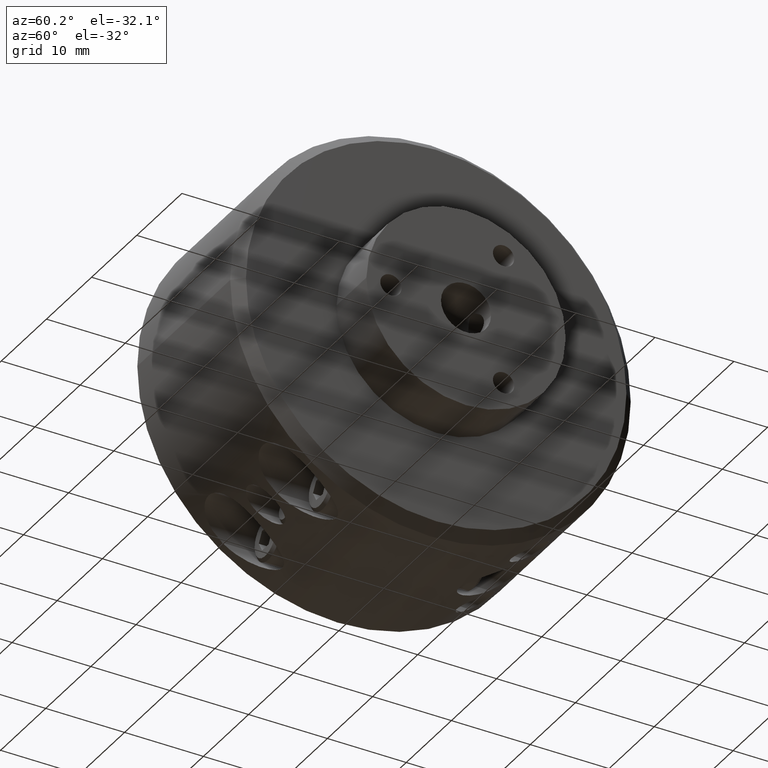
[diagram: clean part render]
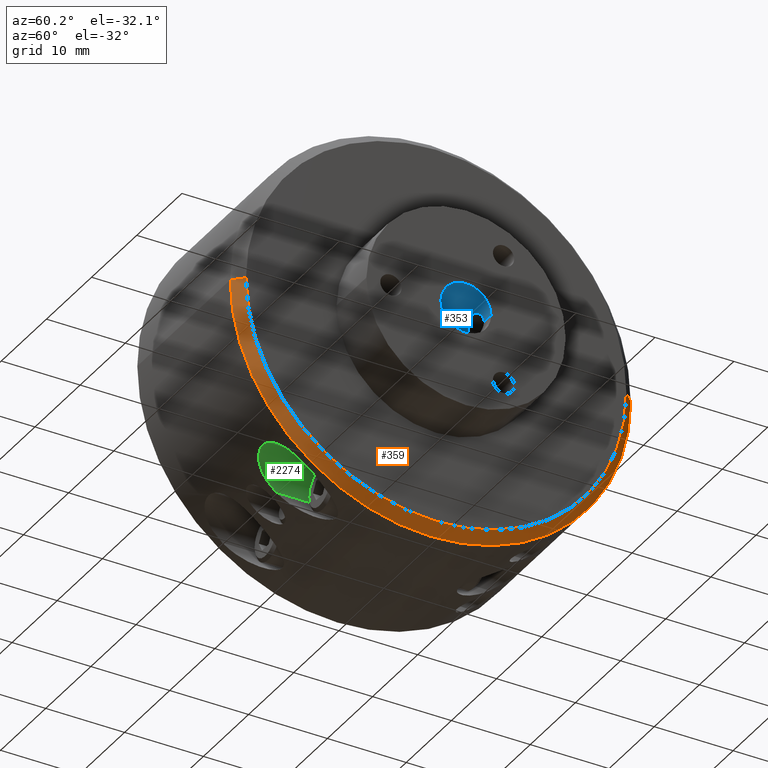
[diagram: same view with three faces highlighted in distinct colors, each labeled with its STEP entity id]
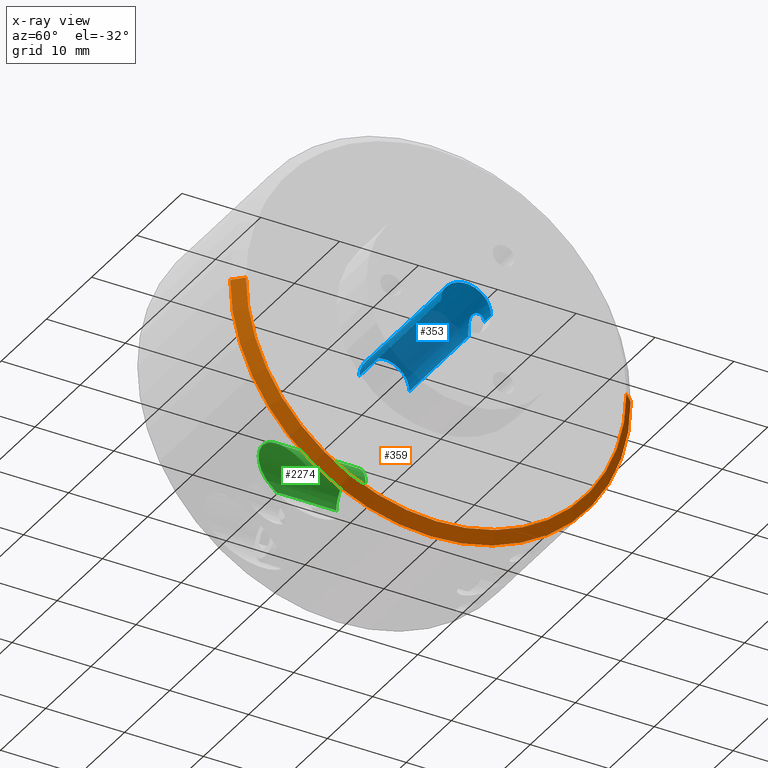
[diagram: x-ray of the same camera — body ghosted, the three highlighted faces saturated]
A machine part, auxiliary view with three faces highlighted in distinct colors.
The next image is the same camera in x-ray (body ghosted, the three faces saturated) — at least one of them is partly hidden behind the body in this view.
Their STEP definitions:

[orange] entity #359 — the highlighted conical surface has half-angle 45 deg.
#136 = AXIS2_PLACEMENT_3D ( 'NONE', #395, #504, #498 ) ;
#203 = AXIS2_PLACEMENT_3D ( 'NONE', #2701, #2879, #2624 ) ;
#211 = AXIS2_PLACEMENT_3D ( 'NONE', #2680, #2524, #2723 ) ;
#359 = ADVANCED_FACE ( 'NONE', ( #3288 ), #3297, .T. ) ;
#395 = CARTESIAN_POINT ( 'NONE',  ( 0.4050000000000004700, 1.337268248646842600E-016, 0.0000000000000000000 ) ) ;
#498 = DIRECTION ( 'NONE',  ( 1.365923996832131600E-016, -1.000000000000000000, 0.0000000000000000000 ) ) ;
#504 = DIRECTION ( 'NONE',  ( -1.000000000000000000, -1.193989507720393000E-016, -0.0000000000000000000 ) ) ;
#622 = EDGE_CURVE ( 'NONE', #846, #809, #3490, .T. ) ;
#638 = EDGE_CURVE ( 'NONE', #845, #831, #2891, .T. ) ;
#656 = EDGE_CURVE ( 'NONE', #846, #831, #2907, .T. ) ;
#678 = EDGE_CURVE ( 'NONE', #809, #845, #2933, .T. ) ;
#809 = VERTEX_POINT ( 'NONE', #1678 ) ;
#831 = VERTEX_POINT ( 'NONE', #1700 ) ;
#845 = VERTEX_POINT ( 'NONE', #1714 ) ;
#846 = VERTEX_POINT ( 'NONE', #1715 ) ;
#1117 = CARTESIAN_POINT ( 'NONE',  ( 0.4050000000000005800, -0.9999999999999998900, 0.0000000000000000000 ) ) ;
#1118 = DIRECTION ( 'NONE',  ( -0.7071067811865454600, -0.7071067811865495700, 0.0000000000000000000 ) ) ;
#1217 = CARTESIAN_POINT ( 'NONE',  ( 0.4050000000000003000, 1.000000000000000200, 1.224646799147353200E-016 ) ) ;
#1218 = DIRECTION ( 'NONE',  ( -0.7071067811865456900, 0.7071067811865493500, 8.659560562354956300E-017 ) ) ;
#1678 = CARTESIAN_POINT ( 'NONE',  ( 0.4550000000000000700, 0.9500000000000000700, 1.194030629168669300E-016 ) ) ;
#1700 = CARTESIAN_POINT ( 'NONE',  ( 0.4050000000000005800, -0.9999999999999998900, 0.0000000000000000000 ) ) ;
#1714 = CARTESIAN_POINT ( 'NONE',  ( 0.4050000000000003000, 1.000000000000000200, 1.224646799147353500E-016 ) ) ;
#1715 = CARTESIAN_POINT ( 'NONE',  ( 0.4550000000000003500, -0.9499999999999998400, 0.0000000000000000000 ) ) ;
#2338 = ORIENTED_EDGE ( 'NONE', *, *, #656, .T. ) ;
#2342 = ORIENTED_EDGE ( 'NONE', *, *, #638, .F. ) ;
#2422 = ORIENTED_EDGE ( 'NONE', *, *, #622, .F. ) ;
#2452 = ORIENTED_EDGE ( 'NONE', *, *, #678, .F. ) ;
#2524 = DIRECTION ( 'NONE',  ( -1.000000000000000000, -1.193989507720393000E-016, -0.0000000000000000000 ) ) ;
#2624 = DIRECTION ( 'NONE',  ( 1.437814733507507100E-016, -1.000000000000000000, 0.0000000000000000000 ) ) ;
#2680 = CARTESIAN_POINT ( 'NONE',  ( 0.4050000000000004700, 1.337268248646842600E-016, 0.0000000000000000000 ) ) ;
#2701 = CARTESIAN_POINT ( 'NONE',  ( 0.4550000000000001800, 1.396967724032861400E-016, 0.0000000000000000000 ) ) ;
#2723 = DIRECTION ( 'NONE',  ( 1.365923996832131600E-016, -1.000000000000000000, 0.0000000000000000000 ) ) ;
#2879 = DIRECTION ( 'NONE',  ( 1.000000000000000000, 1.193989507720394800E-016, 0.0000000000000000000 ) ) ;
#2891 = CIRCLE ( 'NONE', #211, 1.000000000000000000 ) ;
#2907 = LINE ( 'NONE', #1117, #2908 ) ;
#2908 = VECTOR ( 'NONE', #1118, 39.37007874015748100 ) ;
#2933 = LINE ( 'NONE', #1217, #2934 ) ;
#2934 = VECTOR ( 'NONE', #1218, 39.37007874015748100 ) ;
#3288 = FACE_OUTER_BOUND ( 'NONE', #3682, .T. ) ;
#3297 = CONICAL_SURFACE ( 'NONE', #136, 1.000000000000000000, 0.7853981633974510500 ) ;
#3490 = CIRCLE ( 'NONE', #203, 0.9499999999999999600 ) ;
#3682 = EDGE_LOOP ( 'NONE', ( #2452, #2422, #2338, #2342 ) ) ;

[blue] entity #353 — the highlighted cylindrical surface (edge-blend (fillet) strip) has radius 3.175 mm, axis along (1, 0, -0).
#14 = CARTESIAN_POINT ( 'NONE',  ( 0.5170000000000000200, 0.1250000000000001400, 3.821250366191347800E-019 ) ) ;
#128 = AXIS2_PLACEMENT_3D ( 'NONE', #403, #443, #513 ) ;
#165 = AXIS2_PLACEMENT_3D ( 'NONE', #2512, #2609, #2820 ) ;
#169 = AXIS2_PLACEMENT_3D ( 'NONE', #2830, #2801, #2575 ) ;
#353 = ADVANCED_FACE ( 'NONE', ( #3270 ), #3285, .F. ) ;
#403 = CARTESIAN_POINT ( 'NONE',  ( -0.7149999999999996400, 3.032960542342103800E-032, 0.0000000000000000000 ) ) ;
#443 = DIRECTION ( 'NONE',  ( 1.000000000000000000, 1.193989507720394800E-016, -0.0000000000000000000 ) ) ;
#469 = VERTEX_POINT ( 'NONE', #14 ) ;
#513 = DIRECTION ( 'NONE',  ( 0.0000000000000000000, 1.000000000000000000, 0.0000000000000000000 ) ) ;
#531 = EDGE_CURVE ( 'NONE', #840, #916, #3359, .T. ) ;
#540 = EDGE_CURVE ( 'NONE', #823, #1376, #3368, .T. ) ;
#542 = EDGE_CURVE ( 'NONE', #825, #897, #2465, .T. ) ;
#663 = EDGE_CURVE ( 'NONE', #469, #825, #2300, .T. ) ;
#692 = EDGE_CURVE ( 'NONE', #823, #469, #2946, .T. ) ;
#695 = EDGE_CURVE ( 'NONE', #1376, #916, #2959, .T. ) ;
#714 = EDGE_CURVE ( 'NONE', #897, #840, #2979, .T. ) ;
#823 = VERTEX_POINT ( 'NONE', #1692 ) ;
#825 = VERTEX_POINT ( 'NONE', #1694 ) ;
#840 = VERTEX_POINT ( 'NONE', #1709 ) ;
#897 = VERTEX_POINT ( 'NONE', #1763 ) ;
#916 = VERTEX_POINT ( 'NONE', #1781 ) ;
#1127 = CARTESIAN_POINT ( 'NONE',  ( 0.5170000000000000200, 0.1250000000000001400, 3.821250366191347800E-019 ) ) ;
#1147 = CARTESIAN_POINT ( 'NONE',  ( 0.5170000000000001300, 0.1250000000000001400, 0.004597177212403101200 ) ) ;
#1148 = CARTESIAN_POINT ( 'NONE',  ( 0.5174612564230969300, 0.1247473855785759700, 0.009100874420990237600 ) ) ;
#1149 = CARTESIAN_POINT ( 'NONE',  ( 0.5192528699671881100, 0.1237865640216849700, 0.01793384207641626100 ) ) ;
#1150 = CARTESIAN_POINT ( 'NONE',  ( 0.5206078562973611700, 0.1230655871878557800, 0.02230521580235242000 ) ) ;
#1151 = CARTESIAN_POINT ( 'NONE',  ( 0.5258022622888429700, 0.1204015550863055700, 0.03462818419039922400 ) ) ;
#1152 = CARTESIAN_POINT ( 'NONE',  ( 0.5308516916564427500, 0.1179051011017718100, 0.04204348587904195600 ) ) ;
#1153 = CARTESIAN_POINT ( 'NONE',  ( 0.5431811266379527000, 0.1127758473194550000, 0.05432196454528497000 ) ) ;
#1154 = CARTESIAN_POINT ( 'NONE',  ( 0.5505698187351132400, 0.1101089459691188800, 0.05930092799048442000 ) ) ;
#1155 = CARTESIAN_POINT ( 'NONE',  ( 0.5627908422041947300, 0.1071383793984366800, 0.06442253232074476900 ) ) ;
#1156 = CARTESIAN_POINT ( 'NONE',  ( 0.5671531657757990000, 0.1063032403000085400, 0.06577024572360022600 ) ) ;
#1157 = CARTESIAN_POINT ( 'NONE',  ( 0.5759723683828248400, 0.1051825438895193100, 0.06754803166453815500 ) ) ;
#1158 = CARTESIAN_POINT ( 'NONE',  ( 0.5804500864211641400, 0.1048856520216198000, 0.06799999999999795100 ) ) ;
#1159 = CARTESIAN_POINT ( 'NONE',  ( 0.5849999999999716500, 0.1048856520216246800, 0.06800000000000534800 ) ) ;
#1260 = CARTESIAN_POINT ( 'NONE',  ( -0.7149999999999996400, 0.1250000000000000000, 0.0000000000000000000 ) ) ;
#1264 = DIRECTION ( 'NONE',  ( 1.000000000000000000, 1.193989507720394800E-016, -0.0000000000000000000 ) ) ;
#1265 = CARTESIAN_POINT ( 'NONE',  ( -0.7149999999999996400, -0.1250000000000000000, 1.530808498934191500E-017 ) ) ;
#1272 = DIRECTION ( 'NONE',  ( 1.000000000000000000, 1.193989507720394800E-016, -0.0000000000000000000 ) ) ;
#1376 = VERTEX_POINT ( 'NONE', #1785 ) ;
#1386 = CARTESIAN_POINT ( 'NONE',  ( -0.7149999999999996400, 0.1250000000000000000, 0.0000000000000000000 ) ) ;
#1387 = DIRECTION ( 'NONE',  ( 1.000000000000000000, 1.193989507720394800E-016, -0.0000000000000000000 ) ) ;
#1692 = CARTESIAN_POINT ( 'NONE',  ( 0.002500000000000000100, 0.1250000000000001700, 0.0000000000000000000 ) ) ;
#1694 = CARTESIAN_POINT ( 'NONE',  ( 0.5849999999999716500, 0.1048856520216246800, 0.06800000000000534800 ) ) ;
#1709 = CARTESIAN_POINT ( 'NONE',  ( 0.7150000000000001900, 0.1250000000000001700, 0.0000000000000000000 ) ) ;
#1763 = CARTESIAN_POINT ( 'NONE',  ( 0.6530000000000569800, 0.1250000000000313400, -5.915159800068087900E-015 ) ) ;
#1781 = CARTESIAN_POINT ( 'NONE',  ( 0.7150000000000001900, -0.1249999999999998300, 1.530808498934191500E-017 ) ) ;
#1785 = CARTESIAN_POINT ( 'NONE',  ( 0.002500000000000000100, -0.1249999999999998300, 1.530808498934191500E-017 ) ) ;
#2300 = B_SPLINE_CURVE_WITH_KNOTS ( 'NONE', 3,
 ( #1127, #1147, #1148, #1149, #1150, #1151, #1152, #1153, #1154, #1155, #1156, #1157, #1158, #1159 ),
 .UNSPECIFIED., .F., .F.,
 ( 4, 2, 2, 2, 2, 2, 4 ),
 ( 2.541971923693354100E-019, 0.0003448980618869013100, 0.0006897961237738023000, 0.001379592247547602200, 0.002069388371321402100, 0.002414286433208299800, 0.002759184495095197100 ),
 .UNSPECIFIED. ) ;
#2462 = EDGE_LOOP ( 'NONE', ( #3513, #3525, #3603, #3586, #3536, #3601, #3564 ) ) ;
#2465 = B_SPLINE_CURVE_WITH_KNOTS ( 'NONE', 3,
 ( #2549, #2567, #2504, #2561, #2597, #2652, #2611, #2558, #2711, #2520, #2660, #2705, #2632, #2637 ),
 .UNSPECIFIED., .F., .F.,
 ( 4, 2, 2, 2, 2, 2, 4 ),
 ( 0.002759184495095197100, 0.003103542578769292000, 0.003447900662443387300, 0.004136616829791576700, 0.004825332997139766500, 0.005169691080813862200, 0.005514049164487957100 ),
 .UNSPECIFIED. ) ;
#2504 = CARTESIAN_POINT ( 'NONE',  ( 0.5941356539297754100, 0.1051920511929587800, 0.06753334104602282100 ) ) ;
#2512 = CARTESIAN_POINT ( 'NONE',  ( 0.002500000000000000100, 1.707404996040164500E-016, 0.0000000000000000000 ) ) ;
#2520 = CARTESIAN_POINT ( 'NONE',  ( 0.6494076116300988600, 0.1230738582384731900, 0.02225439114618697400 ) ) ;
#2549 = CARTESIAN_POINT ( 'NONE',  ( 0.5849999999999716500, 0.1048856520216246800, 0.06800000000000534800 ) ) ;
#2558 = CARTESIAN_POINT ( 'NONE',  ( 0.6392295574703329400, 0.1179434405829972700, 0.04193630725446686300 ) ) ;
#2561 = CARTESIAN_POINT ( 'NONE',  ( 0.6029471878181487100, 0.1063203132615651300, 0.06574276214902403900 ) ) ;
#2567 = CARTESIAN_POINT ( 'NONE',  ( 0.5895427901574732400, 0.1048856520216173800, 0.06800000000000165600 ) ) ;
#2575 = DIRECTION ( 'NONE',  ( 0.0000000000000000000, 1.000000000000000000, 0.0000000000000000000 ) ) ;
#2597 = CARTESIAN_POINT ( 'NONE',  ( 0.6072762627932033500, 0.1071513997025680000, 0.06440150807647761200 ) ) ;
#2609 = DIRECTION ( 'NONE',  ( 1.000000000000000000, 0.0000000000000000000, 0.0000000000000000000 ) ) ;
#2611 = CARTESIAN_POINT ( 'NONE',  ( 0.6269421092708745700, 0.1128226519951416700, 0.05422507021184213400 ) ) ;
#2632 = CARTESIAN_POINT ( 'NONE',  ( 0.6530000000000004700, 0.1250000000000007200, 0.004537651897807780600 ) ) ;
#2637 = CARTESIAN_POINT ( 'NONE',  ( 0.6530000000000569800, 0.1250000000000313400, -5.915159800068087900E-015 ) ) ;
#2652 = CARTESIAN_POINT ( 'NONE',  ( 0.6195759746309664800, 0.1101510795155072200, 0.05922538716247192200 ) ) ;
#2660 = CARTESIAN_POINT ( 'NONE',  ( 0.6507574113311254100, 0.1237920219119307600, 0.01790150408575156800 ) ) ;
#2705 = CARTESIAN_POINT ( 'NONE',  ( 0.6525503323680886800, 0.1247536570490513800, 0.009025164290127908300 ) ) ;
#2711 = CARTESIAN_POINT ( 'NONE',  ( 0.6442639742547211500, 0.1204348588561655700, 0.03449891013148825200 ) ) ;
#2801 = DIRECTION ( 'NONE',  ( 1.000000000000000000, 1.193989507720394800E-016, 0.0000000000000000000 ) ) ;
#2820 = DIRECTION ( 'NONE',  ( 0.0000000000000000000, 0.0000000000000000000, -1.000000000000000000 ) ) ;
#2830 = CARTESIAN_POINT ( 'NONE',  ( 0.7150000000000001900, 1.707404996040164500E-016, 0.0000000000000000000 ) ) ;
#2946 = LINE ( 'NONE', #1260, #2955 ) ;
#2955 = VECTOR ( 'NONE', #1264, 39.37007874015748100 ) ;
#2956 = VECTOR ( 'NONE', #1272, 39.37007874015748100 ) ;
#2959 = LINE ( 'NONE', #1265, #2956 ) ;
#2975 = VECTOR ( 'NONE', #1387, 39.37007874015748100 ) ;
#2979 = LINE ( 'NONE', #1386, #2975 ) ;
#3270 = FACE_OUTER_BOUND ( 'NONE', #2462, .T. ) ;
#3285 = CYLINDRICAL_SURFACE ( 'NONE', #128, 0.1250000000000000000 ) ;
#3359 = CIRCLE ( 'NONE', #169, 0.1250000000000000000 ) ;
#3368 = CIRCLE ( 'NONE', #165, 0.1250000000000000000 ) ;
#3513 = ORIENTED_EDGE ( 'NONE', *, *, #695, .F. ) ;
#3525 = ORIENTED_EDGE ( 'NONE', *, *, #540, .F. ) ;
#3536 = ORIENTED_EDGE ( 'NONE', *, *, #542, .T. ) ;
#3564 = ORIENTED_EDGE ( 'NONE', *, *, #531, .T. ) ;
#3586 = ORIENTED_EDGE ( 'NONE', *, *, #663, .T. ) ;
#3601 = ORIENTED_EDGE ( 'NONE', *, *, #714, .T. ) ;
#3603 = ORIENTED_EDGE ( 'NONE', *, *, #692, .T. ) ;

[green] entity #2274 — the highlighted cylindrical surface (edge-blend (fillet) strip) has radius 3.25 mm, axis along (0, 1, 0).
#113 = CARTESIAN_POINT ( 'NONE',  ( 0.3639173228346456700, -0.5999999999999996400, -0.8000000000000000400 ) ) ;
#243 = AXIS2_PLACEMENT_3D ( 'NONE', #1448, #1449, #1450 ) ;
#279 = AXIS2_PLACEMENT_3D ( 'NONE', #1838, #1837, #1833 ) ;
#508 = VERTEX_POINT ( 'NONE', #113 ) ;
#516 = VERTEX_POINT ( 'NONE', #2469 ) ;
#726 = EDGE_CURVE ( 'NONE', #819, #516, #3004, .T. ) ;
#731 = EDGE_CURVE ( 'NONE', #835, #516, #3009, .T. ) ;
#751 = EDGE_CURVE ( 'NONE', #508, #819, #3042, .T. ) ;
#772 = EDGE_CURVE ( 'NONE', #835, #508, #2325, .T. ) ;
#819 = VERTEX_POINT ( 'NONE', #1688 ) ;
#835 = VERTEX_POINT ( 'NONE', #1704 ) ;
#1448 = CARTESIAN_POINT ( 'NONE',  ( 0.2359645669291340900, -0.2999999999999998200, -0.8000000000000000400 ) ) ;
#1449 = DIRECTION ( 'NONE',  ( -1.024442997624098700E-016, -1.000000000000000000, -0.0000000000000000000 ) ) ;
#1450 = DIRECTION ( 'NONE',  ( 1.000000000000000000, 0.0000000000000000000, 0.0000000000000000000 ) ) ;
#1460 = CARTESIAN_POINT ( 'NONE',  ( 0.1080118110236226400, 1.000000000000000000, -0.8000000000000000400 ) ) ;
#1461 = DIRECTION ( 'NONE',  ( 1.024442997624098800E-016, 1.000000000000000000, 0.0000000000000000000 ) ) ;
#1532 = CARTESIAN_POINT ( 'NONE',  ( 0.3639173228346458400, 1.000000000000000000, -0.8000000000000000400 ) ) ;
#1533 = DIRECTION ( 'NONE',  ( 1.024442997624098800E-016, 1.000000000000000000, 0.0000000000000000000 ) ) ;
#1600 = CARTESIAN_POINT ( 'NONE',  ( 0.1080118110236218100, -0.5999999999999997600, -0.8000000000000003800 ) ) ;
#1604 = CARTESIAN_POINT ( 'NONE',  ( 0.1080118110236225100, -0.6084591341117919800, -0.7936556494161561800 ) ) ;
#1605 = CARTESIAN_POINT ( 'NONE',  ( 0.1084868535243365000, -0.6168646657414411600, -0.7871392232590345200 ) ) ;
#1606 = CARTESIAN_POINT ( 'NONE',  ( 0.1105018926419394100, -0.6332510600143379500, -0.7740176145436575800 ) ) ;
#1607 = CARTESIAN_POINT ( 'NONE',  ( 0.1120393318690609400, -0.6412729290867967800, -0.7673821578382310500 ) ) ;
#1608 = CARTESIAN_POINT ( 'NONE',  ( 0.1163616544309301600, -0.6569619823320269600, -0.7539942304277883500 ) ) ;
#1609 = CARTESIAN_POINT ( 'NONE',  ( 0.1191687107209970500, -0.6646786411002070200, -0.7471962461673756800 ) ) ;
#1610 = CARTESIAN_POINT ( 'NONE',  ( 0.1262298104840957900, -0.6794827353323904500, -0.7337595918328070300 ) ) ;
#1611 = CARTESIAN_POINT ( 'NONE',  ( 0.1304529855575853600, -0.6865324335573447200, -0.7271580402511811400 ) ) ;
#1612 = CARTESIAN_POINT ( 'NONE',  ( 0.1405732769567887600, -0.6998689612690094400, -0.7143311801121000600 ) ) ;
#1613 = CARTESIAN_POINT ( 'NONE',  ( 0.1465507381486257900, -0.7062192030295706400, -0.7080395007495833300 ) ) ;
#1614 = CARTESIAN_POINT ( 'NONE',  ( 0.1601836447106886900, -0.7175863361797478700, -0.6965165809064185500 ) ) ;
#1615 = CARTESIAN_POINT ( 'NONE',  ( 0.1678499711825938400, -0.7226497129426829900, -0.6912427464715781300 ) ) ;
#1617 = CARTESIAN_POINT ( 'NONE',  ( 0.1851873195900180800, -0.7312421452450972300, -0.6821466610510239500 ) ) ;
#1618 = CARTESIAN_POINT ( 'NONE',  ( 0.1945170083640084800, -0.7346094698825346200, -0.6784990179717117500 ) ) ;
#1619 = CARTESIAN_POINT ( 'NONE',  ( 0.2147129430569958700, -0.7392907402912021200, -0.6733952717010732700 ) ) ;
#1620 = CARTESIAN_POINT ( 'NONE',  ( 0.2252054591161319600, -0.7404969773696877800, -0.6720596898973398800 ) ) ;
#1621 = CARTESIAN_POINT ( 'NONE',  ( 0.2411205547946683700, -0.7405138019590594700, -0.6720411514020379100 ) ) ;
#1622 = CARTESIAN_POINT ( 'NONE',  ( 0.2465041130554924700, -0.7402128357558693800, -0.6723732065682589400 ) ) ;
#1623 = CARTESIAN_POINT ( 'NONE',  ( 0.2569637214328117600, -0.7390308203961629700, -0.6736721885555339000 ) ) ;
#1624 = CARTESIAN_POINT ( 'NONE',  ( 0.2620902242410836400, -0.7381528885858942300, -0.6746356387236812600 ) ) ;
#1625 = CARTESIAN_POINT ( 'NONE',  ( 0.2721446305913397500, -0.7358382126363487400, -0.6771595504664708100 ) ) ;
#1626 = CARTESIAN_POINT ( 'NONE',  ( 0.2770939270682419300, -0.7343892644168078500, -0.6787329960976447000 ) ) ;
#1627 = CARTESIAN_POINT ( 'NONE',  ( 0.2865052115124599500, -0.7310354641974062800, -0.6823439175137634400 ) ) ;
#1628 = CARTESIAN_POINT ( 'NONE',  ( 0.2910050442010663200, -0.7291246081164040000, -0.6843880080966833200 ) ) ;
#1629 = CARTESIAN_POINT ( 'NONE',  ( 0.2996269375650459900, -0.7248608152598725600, -0.6889023430706549000 ) ) ;
#1630 = CARTESIAN_POINT ( 'NONE',  ( 0.3037683500615253100, -0.7224919158988479800, -0.6913889172279432700 ) ) ;
#1631 = CARTESIAN_POINT ( 'NONE',  ( 0.3115061757834352600, -0.7174483745345602300, -0.6966211547767791100 ) ) ;
#1632 = CARTESIAN_POINT ( 'NONE',  ( 0.3151257652586349500, -0.7147654232371718500, -0.6993759012586576700 ) ) ;
#1633 = CARTESIAN_POINT ( 'NONE',  ( 0.3253234198878717200, -0.7062698721073499300, -0.7079886396126406900 ) ) ;
#1634 = CARTESIAN_POINT ( 'NONE',  ( 0.3312923539922563700, -0.6999459719359830700, -0.7142563195256159700 ) ) ;
#1635 = CARTESIAN_POINT ( 'NONE',  ( 0.3414726052175719500, -0.6865437323305817500, -0.7271479610156946800 ) ) ;
#1636 = CARTESIAN_POINT ( 'NONE',  ( 0.3456849937983854600, -0.6795012932162223200, -0.7337414730415695600 ) ) ;
#1637 = CARTESIAN_POINT ( 'NONE',  ( 0.3527078424476177100, -0.6648002563463512000, -0.7470871273857936400 ) ) ;
#1638 = CARTESIAN_POINT ( 'NONE',  ( 0.3555246151502720600, -0.6570994812748953700, -0.7538753561549659300 ) ) ;
#1639 = CARTESIAN_POINT ( 'NONE',  ( 0.3620659441273986800, -0.6334099105632673400, -0.7740949611244663000 ) ) ;
#1640 = CARTESIAN_POINT ( 'NONE',  ( 0.3639173228346457300, -0.6170420612373119800, -0.7872184540720158500 ) ) ;
#1641 = CARTESIAN_POINT ( 'NONE',  ( 0.3639173228346456700, -0.5999999999999996400, -0.8000000000000000400 ) ) ;
#1688 = CARTESIAN_POINT ( 'NONE',  ( 0.3639173228346456200, -0.2999999999999998200, -0.8000000000000000400 ) ) ;
#1704 = CARTESIAN_POINT ( 'NONE',  ( 0.1080118110236218100, -0.5999999999999997600, -0.8000000000000003800 ) ) ;
#1833 = DIRECTION ( 'NONE',  ( 1.000000000000000000, 0.0000000000000000000, 0.0000000000000000000 ) ) ;
#1837 = DIRECTION ( 'NONE',  ( 1.024442997624098700E-016, 1.000000000000000000, 0.0000000000000000000 ) ) ;
#1838 = CARTESIAN_POINT ( 'NONE',  ( 0.2359645669291342300, 1.000000000000000000, -0.8000000000000000400 ) ) ;
#2274 = ADVANCED_FACE ( 'NONE', ( #3104 ), #3111, .F. ) ;
#2325 = B_SPLINE_CURVE_WITH_KNOTS ( 'NONE', 3,
 ( #1600, #1604, #1605, #1606, #1607, #1608, #1609, #1610, #1611, #1612, #1613, #1614, #1615, #1617, #1618, #1619, #1620, #1621, #1622, #1623, #1624, #1625, #1626, #1627, #1628, #1629, #1630, #1631, #1632, #1633, #1634, #1635, #1636, #1637, #1638, #1639, #1640, #1641 ),
 .UNSPECIFIED., .F., .F.,
 ( 4, 2, 2, 2, 2, 2, 2, 2, 2, 2, 2, 2, 2, 2, 2, 2, 2, 2, 4 ),
 ( 0.01568471295498572600, 0.01648516635960593400, 0.01728561976422614300, 0.01808607316884635500, 0.01888652657346656300, 0.01968697997808677200, 0.02048743338270698000, 0.02128788678732718800, 0.02208834019194740000, 0.02248856689425750600, 0.02288879359656760900, 0.02328902029887771500, 0.02368924700118781700, 0.02408947370349792300, 0.02448970040580802900, 0.02529015381042824800, 0.02609060721504846700, 0.02689106061966868900, 0.02849196742890912300 ),
 .UNSPECIFIED. ) ;
#2469 = CARTESIAN_POINT ( 'NONE',  ( 0.1080118110236225800, -0.2999999999999998200, -0.8000000000000000400 ) ) ;
#3004 = CIRCLE ( 'NONE', #243, 0.1279527559055115300 ) ;
#3009 = LINE ( 'NONE', #1460, #3010 ) ;
#3010 = VECTOR ( 'NONE', #1461, 39.37007874015748100 ) ;
#3042 = LINE ( 'NONE', #1532, #3043 ) ;
#3043 = VECTOR ( 'NONE', #1533, 39.37007874015748100 ) ;
#3104 = FACE_OUTER_BOUND ( 'NONE', #3717, .T. ) ;
#3111 = CYLINDRICAL_SURFACE ( 'NONE', #279, 0.1279527559055115800 ) ;
#3225 = ORIENTED_EDGE ( 'NONE', *, *, #772, .F. ) ;
#3226 = ORIENTED_EDGE ( 'NONE', *, *, #731, .T. ) ;
#3227 = ORIENTED_EDGE ( 'NONE', *, *, #726, .F. ) ;
#3228 = ORIENTED_EDGE ( 'NONE', *, *, #751, .F. ) ;
#3717 = EDGE_LOOP ( 'NONE', ( #3225, #3226, #3227, #3228 ) ) ;